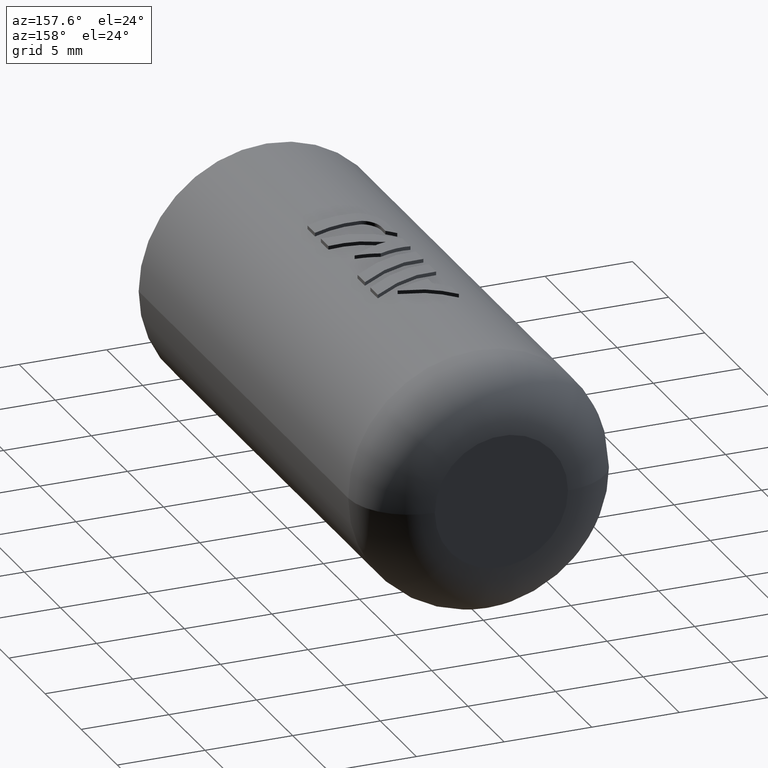
[diagram: clean part render]
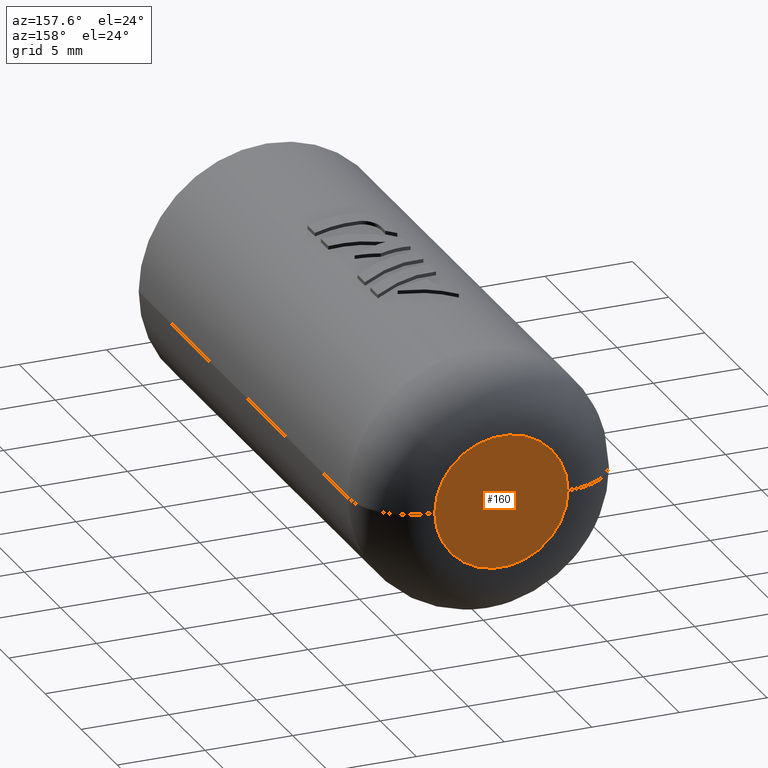
[diagram: same view with one face highlighted and labeled with its STEP entity id]
A machine part, auxiliary view. The second image highlights one B-rep face of the part: STEP entity #160.
In plain terms, the highlighted planar face has unit normal (0, -1, 0).
Its self-contained STEP definition (entity closure, byte-faithful):
#160=ADVANCED_FACE('',(#326),#327,.F.);
#326=FACE_OUTER_BOUND('',#2133,.T.);
#327=PLANE('',#2134);
#2133=EDGE_LOOP('',(#2773,#2774));
#2134=AXIS2_PLACEMENT_3D('',#2775,#2776,#2777);
#2773=ORIENTED_EDGE('',*,*,#2843,.F.);
#2774=ORIENTED_EDGE('',*,*,#3034,.F.);
#2775=CARTESIAN_POINT('',(0.0,32.5,0.0));
#2776=DIRECTION('',(0.0,-1.0,0.0));
#2777=DIRECTION('',(1.0,0.0,-6.12323399573677E-17));
#2843=EDGE_CURVE('',#3068,#3071,#3072,.T.);
#3034=EDGE_CURVE('',#3071,#3068,#3387,.T.);
#3068=VERTEX_POINT('',#4256);
#3071=VERTEX_POINT('',#4259);
#3072=CIRCLE('',#4260,3.8);
#3387=CIRCLE('',#4685,3.8);
#4256=CARTESIAN_POINT('',(3.8,32.5,-2.32682891837997E-16));
#4259=CARTESIAN_POINT('',(-3.8,32.5,6.98048675513991E-16));
#4260=AXIS2_PLACEMENT_3D('',#4711,#4712,#4713);
#4685=AXIS2_PLACEMENT_3D('',#5108,#5109,#5110);
#4711=CARTESIAN_POINT('',(0.0,32.5,0.0));
#4712=DIRECTION('',(0.0,-1.0,0.0));
#4713=DIRECTION('',(1.0,0.0,-6.12323399573677E-17));
#5108=CARTESIAN_POINT('',(0.0,32.5,0.0));
#5109=DIRECTION('',(0.0,-1.0,0.0));
#5110=DIRECTION('',(1.0,0.0,-6.12323399573677E-17));